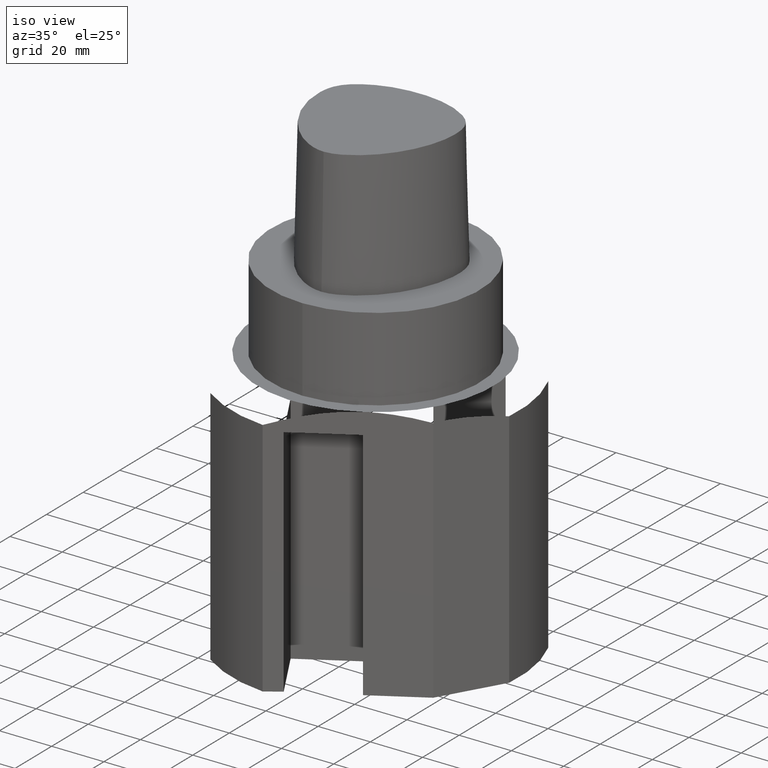
[diagram: clean part render]
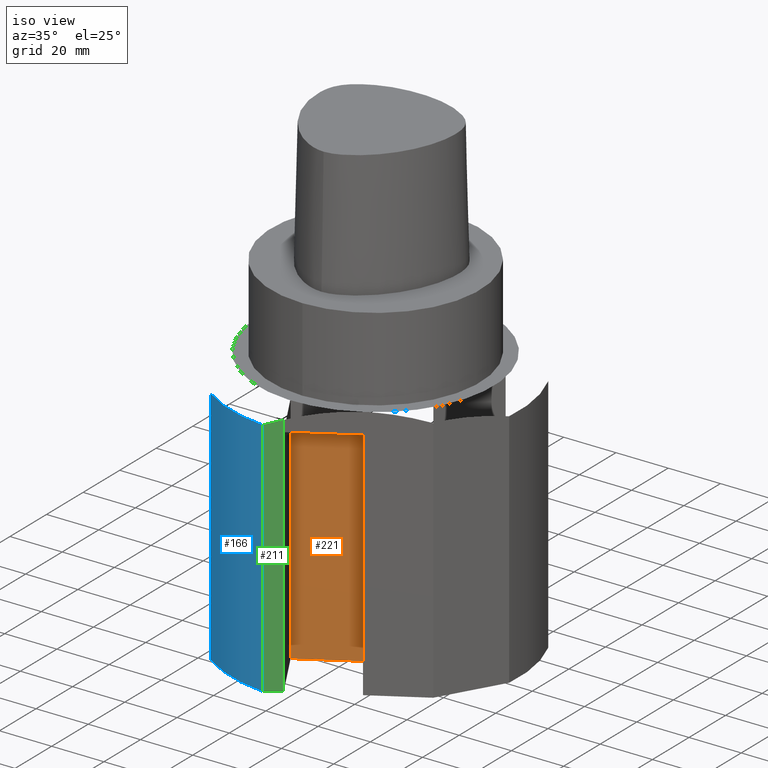
[diagram: same view with three faces highlighted in distinct colors, each labeled with its STEP entity id]
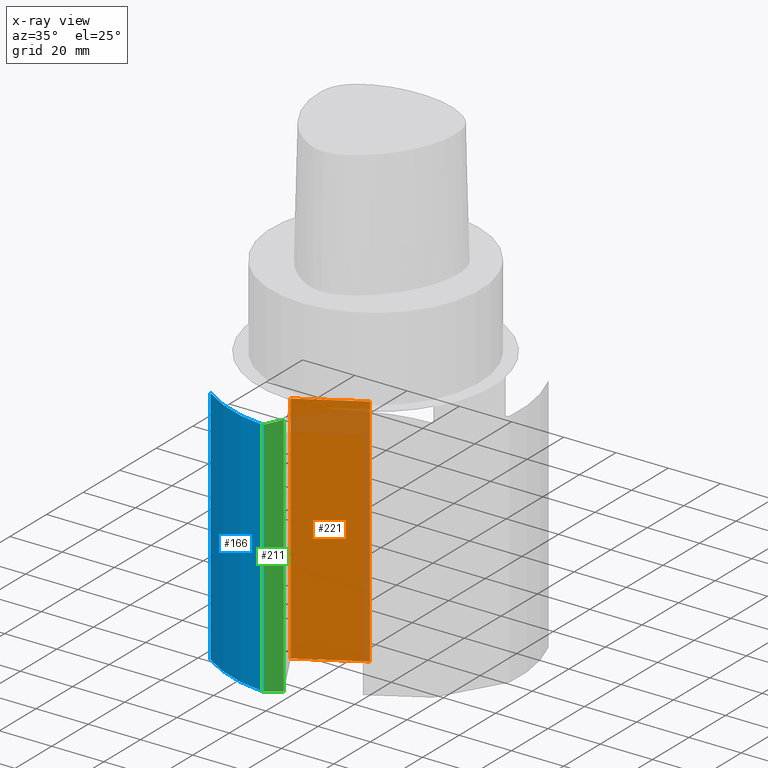
[diagram: x-ray of the same camera — body ghosted, the three highlighted faces saturated]
A machine part, iso view with three faces highlighted in distinct colors.
The next image is the same camera in x-ray (body ghosted, the three faces saturated) — at least one of them is partly hidden behind the body in this view.
Their STEP definitions:

[orange] entity #221 — the highlighted planar face has unit normal (-0.5, 0.866, -0).
#126=EDGE_CURVE('240[2]',#376,#377,#378,.T.);
#183=EDGE_CURVE('240[2]',#376,#468,#469,.T.);
#197=EDGE_CURVE('240[2]',#489,#377,#490,.T.);
#221=ADVANCED_FACE('240[2]',(#522),#523,.F.);
#279=EDGE_CURVE('240[2]',#468,#489,#595,.T.);
#376=VERTEX_POINT('',#697);
#377=VERTEX_POINT('',#698);
#378=LINE('',#699,#700);
#468=VERTEX_POINT('',#1221);
#469=LINE('',#1222,#1223);
#489=VERTEX_POINT('',#1611);
#490=LINE('',#1612,#1613);
#522=FACE_OUTER_BOUND('',#1661,.T.);
#523=PLANE('',#1662);
#595=LINE('',#1940,#1941);
#697=CARTESIAN_POINT('',(10.0000000247073,-17.3205081184835,-130.0));
#698=CARTESIAN_POINT('',(10.0000000247073,-17.3205081184836,-40.0000025629997));
#699=CARTESIAN_POINT('',(10.0000000247073,-17.3205081184835,-310.0));
#700=VECTOR('',#2183,1.0);
#1221=CARTESIAN_POINT('',(-11.6506358277944,-29.8205090963823,-130.0));
#1222=CARTESIAN_POINT('',(-0.841555643628528,-23.579883472602,-130.0));
#1223=VECTOR('',#2265,1.0);
#1611=CARTESIAN_POINT('',(-11.6506358277944,-29.8205090963823,-40.0000025629997));
#1612=CARTESIAN_POINT('',(-11.6506358277944,-29.8205090963823,-40.0000025629997));
#1613=VECTOR('',#2273,1.0);
#1661=EDGE_LOOP('',(#2303,#2304,#2305,#2306));
#1662=AXIS2_PLACEMENT_3D('',#2307,#2308,#2309);
#1940=CARTESIAN_POINT('',(-11.6506358277944,-29.8205090963823,-310.0));
#1941=VECTOR('',#2393,1.0);
#2183=DIRECTION('',(-1.36673693851175E-016,-8.20357802112229E-018,1.0));
#2265=DIRECTION('',(-0.866025394425644,-0.500000016209907,1.14261103305693E-016));
#2273=DIRECTION('',(0.866025394425644,0.500000016209907,1.22464678768614E-016));
#2303=ORIENTED_EDGE('',*,*,#183,.F.);
#2304=ORIENTED_EDGE('',*,*,#126,.T.);
#2305=ORIENTED_EDGE('',*,*,#197,.F.);
#2306=ORIENTED_EDGE('',*,*,#279,.F.);
#2307=CARTESIAN_POINT('',(-0.825317901543536,-23.5705086074329,-310.0));
#2308=DIRECTION('',(-0.500000016209907,0.866025394425644,-6.12323422496111E-017));
#2309=DIRECTION('',(-1.2246468052894E-016,0.0,1.0));
#2393=DIRECTION('',(-1.36673693851175E-016,-8.20357802112229E-018,1.0));

[blue] entity #166 — the highlighted cylindrical surface (partial cylindrical patch) has radius 55 mm, axis along (0, 0, 1).
#144=EDGE_CURVE('240[2]',#408,#409,#410,.F.);
#166=ADVANCED_FACE('240[2]',(#443),#444,.T.);
#269=EDGE_CURVE('240[2]',#409,#582,#583,.T.);
#289=EDGE_CURVE('240[2]',#408,#607,#608,.F.);
#301=EDGE_CURVE('240[2]',#607,#582,#622,.F.);
#408=VERTEX_POINT('',#753);
#409=VERTEX_POINT('',#754);
#410=LINE('',#755,#756);
#443=FACE_OUTER_BOUND('',#1186,.T.);
#444=CYLINDRICAL_SURFACE('',#1187,55.0);
#582=VERTEX_POINT('',#1922);
#583=CIRCLE('',#1923,55.0);
#607=VERTEX_POINT('',#1958);
#608=CIRCLE('',#1959,55.0);
#622=LINE('',#1992,#1993);
#753=CARTESIAN_POINT('',(-31.8448352143207,-44.8431318060282,-130.0));
#754=CARTESIAN_POINT('',(-31.8448352143207,-44.8431318060283,-37.7735059470322));
#755=CARTESIAN_POINT('',(-31.8448352143207,-44.8431318060283,-310.0));
#756=VECTOR('',#2197,1.0);
#1186=EDGE_LOOP('',(#2228,#2229,#2230,#2231));
#1187=AXIS2_PLACEMENT_3D('',#2232,#2233,#2234);
#1922=CARTESIAN_POINT('',(-4.88626245435181,-54.7825194676849,-37.7735059470319));
#1923=AXIS2_PLACEMENT_3D('',#2376,#2377,#2378);
#1958=CARTESIAN_POINT('',(-4.8862624543518,-54.7825194676849,-130.0));
#1959=AXIS2_PLACEMENT_3D('',#2411,#2412,#2413);
#1992=CARTESIAN_POINT('',(-4.88626245435181,-54.7825194676849,-310.0));
#1993=VECTOR('',#2431,1.0);
#2197=DIRECTION('',(-6.12323399573677E-017,-1.22464679914735E-016,-1.0));
#2228=ORIENTED_EDGE('',*,*,#301,.T.);
#2229=ORIENTED_EDGE('',*,*,#269,.F.);
#2230=ORIENTED_EDGE('',*,*,#144,.F.);
#2231=ORIENTED_EDGE('',*,*,#289,.T.);
#2232=CARTESIAN_POINT('',(9.4704812334832E-014,-7.95807864051312E-013,-310.0));
#2233=DIRECTION('',(6.12323399573677E-017,1.22464679914735E-016,1.0));
#2234=DIRECTION('',(1.0,-2.44929359829471E-016,-6.12323399573677E-017));
#2376=CARTESIAN_POINT('',(1.11373877564086E-013,-7.67386154620908E-013,-37.7735059470319));
#2377=DIRECTION('',(6.12323399573677E-017,1.22464679914735E-016,1.0));
#2378=DIRECTION('',(1.0,-2.44929359829471E-016,-6.12323399573677E-017));
#2411=CARTESIAN_POINT('',(1.05726633527158E-013,-7.7376422166666E-013,-130.0));
#2412=DIRECTION('',(-6.12323399573677E-017,-1.22464679914735E-016,-1.0));
#2413=DIRECTION('',(1.0,-2.44929359829471E-016,-6.12323399573677E-017));
#2431=DIRECTION('',(-6.12323399573677E-017,-1.22464679914735E-016,-1.0));

[green] entity #211 — the highlighted planar face has unit normal (-0.5, 0.866, -0).
#211=ADVANCED_FACE('240[2]',(#507),#508,.F.);
#277=EDGE_CURVE('240[2]',#503,#380,#593,.T.);
#299=EDGE_CURVE('240[2]',#582,#380,#620,.T.);
#301=EDGE_CURVE('240[2]',#607,#582,#622,.F.);
#303=EDGE_CURVE('240[2]',#503,#607,#624,.F.);
#380=VERTEX_POINT('',#703);
#503=VERTEX_POINT('',#1634);
#507=FACE_OUTER_BOUND('',#1640,.T.);
#508=PLANE('',#1641);
#582=VERTEX_POINT('',#1922);
#593=LINE('',#1936,#1937);
#607=VERTEX_POINT('',#1958);
#620=(B_SPLINE_CURVE(3,(#1977,#1978,#1979,#1980,#1981,#1982,#1983),.UNSPECIFIED.,.F.,.F.)B_SPLINE_CURVE_WITH_KNOTS((4,3,4),(0.0471597942303852,4.72012085443397,6.0309771040075),.UNSPECIFIED.)RATIONAL_B_SPLINE_CURVE((1.0,1.0,1.0,1.0,1.00252077776089,1.0049819021078,1.00738337304073))BOUNDED_CURVE()REPRESENTATION_ITEM('')GEOMETRIC_REPRESENTATION_ITEM()CURVE());
#622=LINE('',#1992,#1993);
#624=LINE('',#1996,#1997);
#703=CARTESIAN_POINT('',(0.849364907480825,-51.4711439609534,-35.7401656409896));
#1634=CARTESIAN_POINT('',(0.849364907480819,-51.4711439609535,-129.820374840711));
#1640=EDGE_LOOP('',(#2287,#2288,#2289,#2290));
#1641=AXIS2_PLACEMENT_3D('',#2291,#2292,#2293);
#1922=CARTESIAN_POINT('',(-4.88626245435181,-54.7825194676849,-37.7735059470319));
#1936=CARTESIAN_POINT('',(0.849364907480808,-51.4711439609535,-310.0));
#1937=VECTOR('',#2392,1.0);
#1958=CARTESIAN_POINT('',(-4.8862624543518,-54.7825194676849,-130.0));
#1977=CARTESIAN_POINT('',(-4.88626245435181,-54.7825194676849,-37.7735059470319));
#1978=CARTESIAN_POINT('',(-3.38654367289796,-53.9166800875086,-37.1986657279564));
#1979=CARTESIAN_POINT('',(-1.8873048993544,-53.0511178324551,-36.6556719199868));
#1980=CARTESIAN_POINT('',(-0.394032883200821,-52.1890003922457,-36.1514332622152));
#1981=CARTESIAN_POINT('',(0.023805614165559,-51.9477678158138,-36.0103401989299));
#1982=CARTESIAN_POINT('',(0.438238683487812,-51.7085013104502,-35.8732689342945));
#1983=CARTESIAN_POINT('',(0.849364907480971,-51.4711439609534,-35.7401656409896));
#1992=CARTESIAN_POINT('',(-4.88626245435181,-54.7825194676849,-310.0));
#1993=VECTOR('',#2431,1.0);
#1996=CARTESIAN_POINT('',(5.93485398546427,-48.5351157097729,-130.0));
#1997=VECTOR('',#2432,1.0);
#2287=ORIENTED_EDGE('',*,*,#277,.T.);
#2288=ORIENTED_EDGE('',*,*,#299,.F.);
#2289=ORIENTED_EDGE('',*,*,#301,.F.);
#2290=ORIENTED_EDGE('',*,*,#303,.F.);
#2291=CARTESIAN_POINT('',(0.227666012139986,-51.8300721765996,-310.0));
#2292=DIRECTION('',(-0.499989752025083,0.866031320374671,-7.54427059746198E-017));
#2293=DIRECTION('',(-1.50888504552459E-016,0.0,1.0));
#2392=DIRECTION('',(6.12323399573677E-017,1.22464679914735E-016,1.0));
#2431=DIRECTION('',(-6.12323399573677E-017,-1.22464679914735E-016,-1.0));
#2432=DIRECTION('',(0.866031320374671,0.499989752025083,-1.14260209165309E-016));